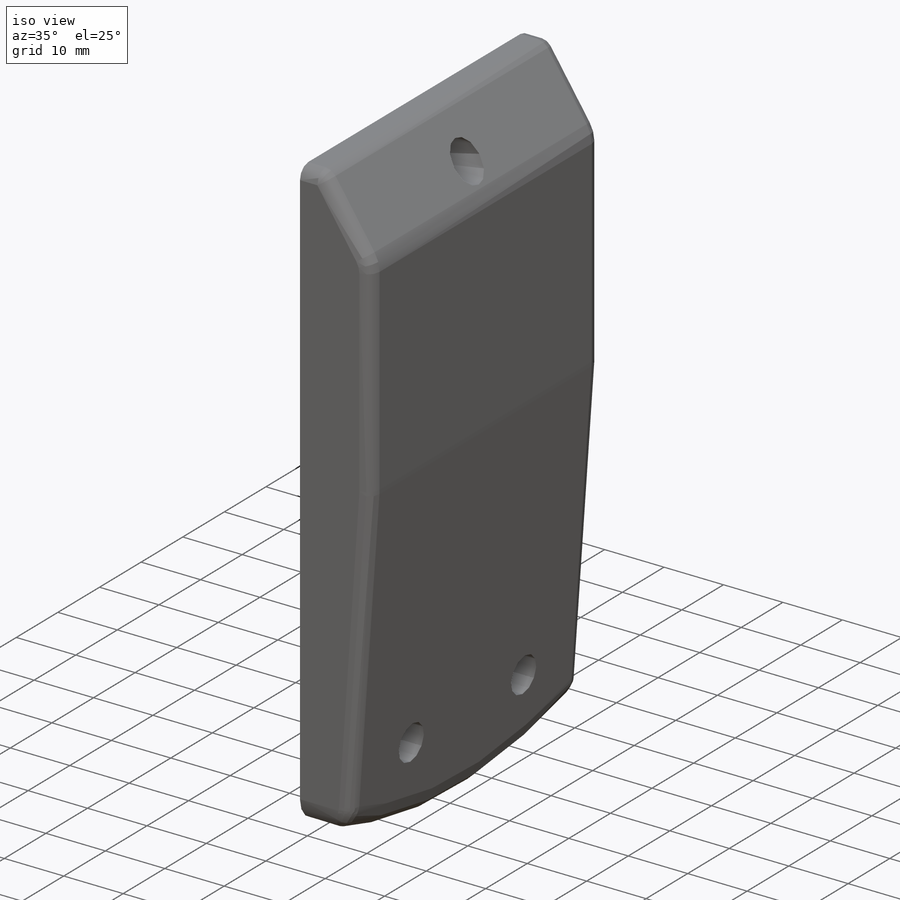
[diagram: iso view]
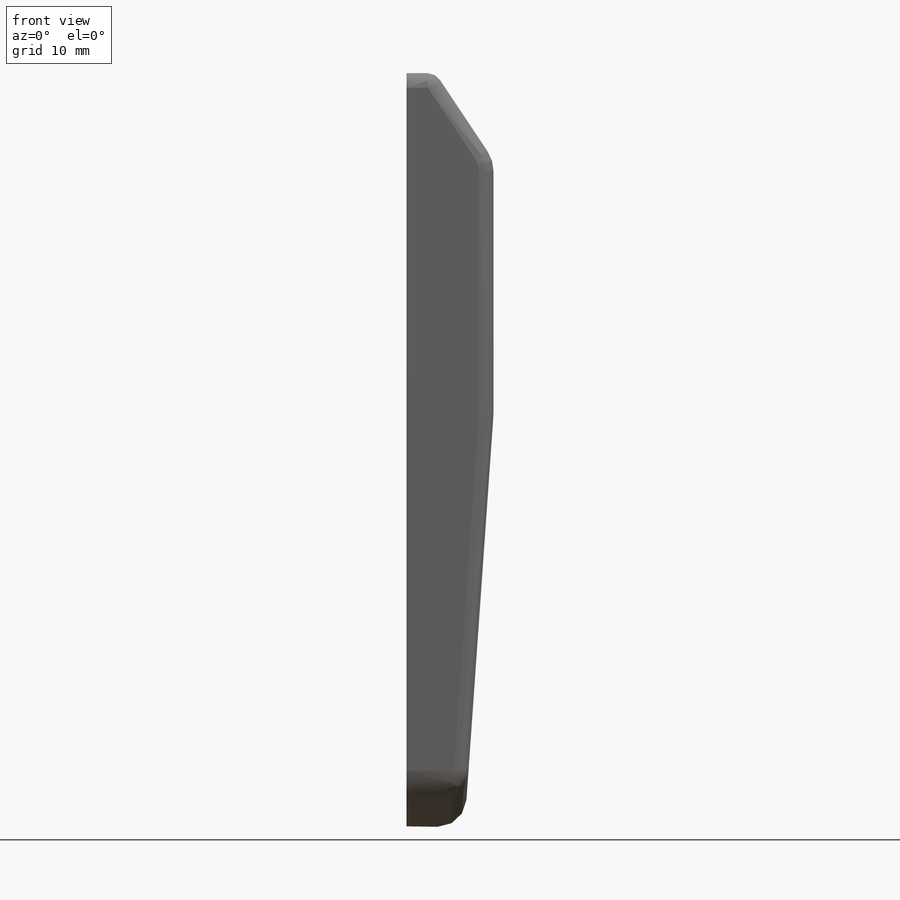
[diagram: front view]
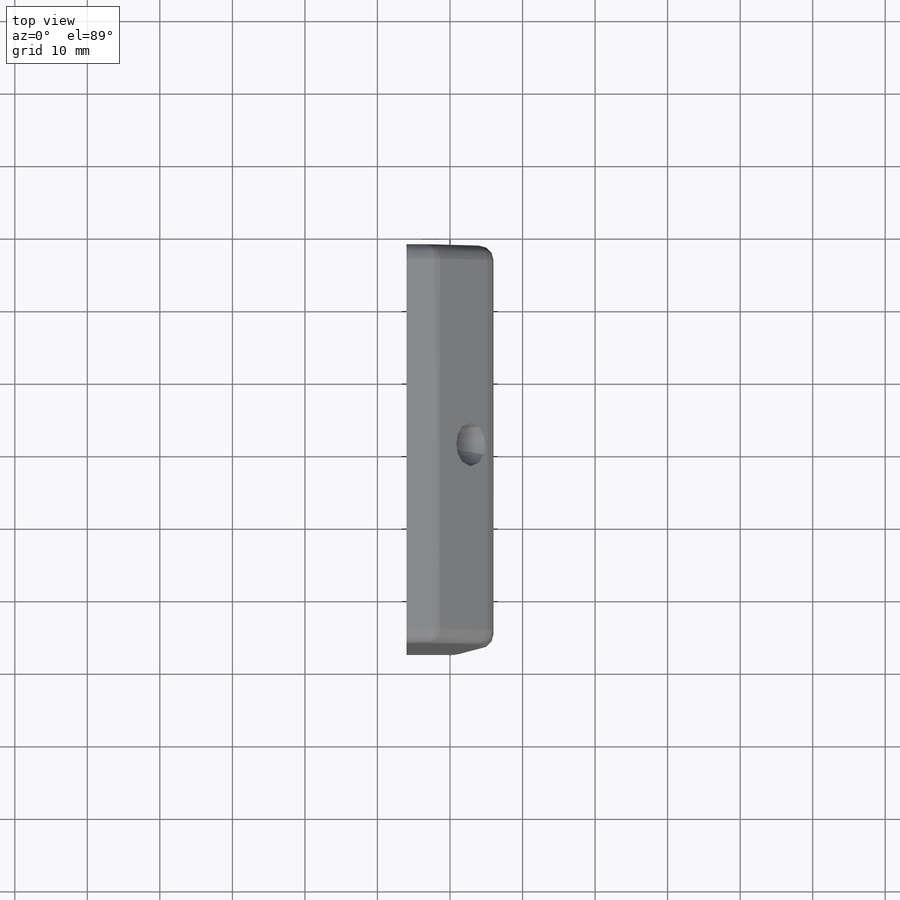
[diagram: top view]
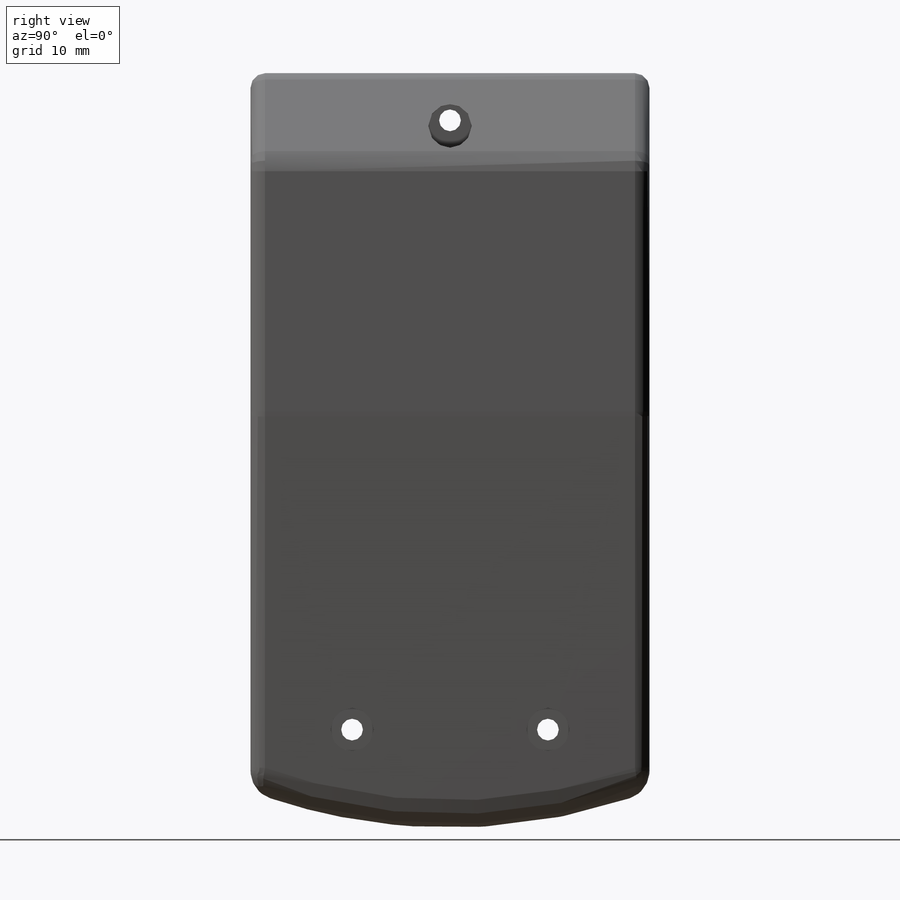
[diagram: right view]
SOLIDWORKS PART (.sldprt)
format: sldprt  version: not decoded by parser v0  size: 441,856 bytes
history: native  units: mm
features: fillet x7, sketch x6, cut_extrude x4, plane x3, extrude x2, material x1, shell x1 (+12 scaffold rows collapsed)
feature tree (36):
  scaffold x12  (default folders/planes/origin — collapsed)
  material  "Alliage 7079"
  plane  "Face"
  plane  "Dessus"
  plane  "Droite"
  sketch  "Esquisse1"  dims[c1.D1=12.0mm c1.D2=104.0mm c1.D6=12.0mm c1.D5=12.0mm c1.D3=4.0mm c1.D4=57.0mm c2.D5=8.0mm c2.D6=12.0mm]
  extrude  "Extrusion1"  Depth=55mm
  sketch  "Esquisse2"  dims[D4=3.0mm D5=3.0mm D6=3.0mm D1=27.0mm D2=6.5mm D3=84.0mm]
  cut_extrude  "Enlèv. mat.-Extru.1"  [1 undecoded]
  sketch  "Esquisse3"  dims[c1.D1=~43.336587mm c1.D2=5.0mm c2.D1=5.0mm c2.D2=58.0mm]
  cut_extrude  "Enlèv. mat.-Extru.3"  Depth=16mm
  shell  "Coque1"  Thickness=3mm
  fillet  "Congé1"  Radius=10mm
  fillet  "Congé2"  Radius=5mm
  fillet  "Congé5"  Radius=2mm
  fillet  "Congé6"  Radius=4mm
  fillet  "Congé7"  Radius=4mm
  fillet  "Congé10"  Radius=4mm
  fillet  "Congé11"  Radius=10mm
  sketch  "Esquisse6"  dims[D1=6.0mm]
  cut_extrude  "Enlèv. mat.-Extru.5"  Depth=10mm
  sketch  "Esquisse8"  dims[D1=6.0mm D2=6.0mm]
  cut_extrude  "Enlèv. mat.-Extru.6"  Depth=10mm
  sketch  "Esquisse9"  dims[D1=2.0mm D2=3.5mm D3=2.0mm D4=3.5mm D5=6.27mm D6=~6.271092mm]
  extrude  "Extrusion2"  Depth=12mm
decode coverage: 19 of 20 modeling features carry decoded parameters
note: ~ marks probable driven/reference dimensions
note: 1 parameter value undecoded
note: suppression state not decoded; provenance and decode notes live in map.json
